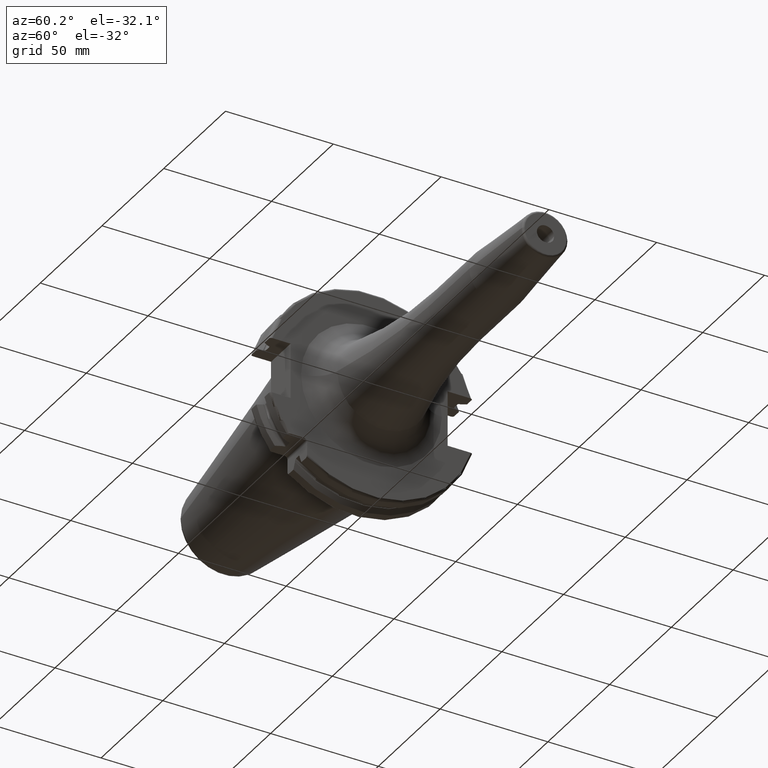
[diagram: clean part render]
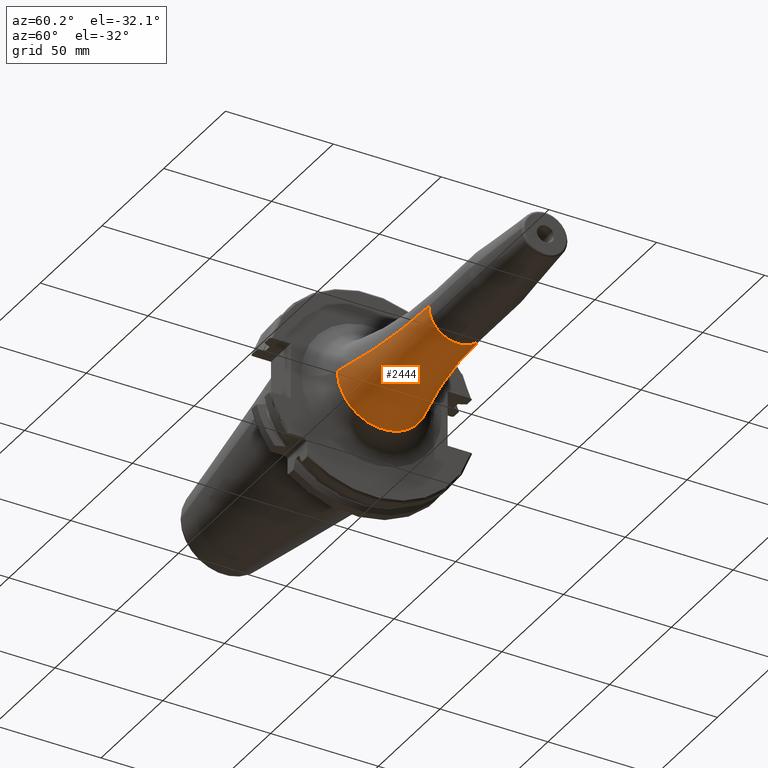
[diagram: same view with one face highlighted and labeled with its STEP entity id]
A machine part, auxiliary view. The second image highlights one B-rep face of the part: STEP entity #2444.
In plain terms, the highlighted toroidal blend (fillet) surface has major radius 263.5 mm and minor (blend) radius 250 mm.
Its self-contained STEP definition (entity closure, byte-faithful):
#911=CARTESIAN_POINT('',(2.812563025210E1,0.E0,0.E0));
#912=DIRECTION('',(1.E0,0.E0,0.E0));
#913=DIRECTION('',(0.E0,-1.E0,0.E0));
#914=AXIS2_PLACEMENT_3D('',#911,#912,#913);
#916=CARTESIAN_POINT('',(8.905E1,-2.635E2,-6.453888631507E-14));
#917=DIRECTION('',(0.E0,0.E0,1.E0));
#918=DIRECTION('',(0.E0,1.E0,0.E0));
#919=AXIS2_PLACEMENT_3D('',#916,#917,#918);
#921=CARTESIAN_POINT('',(8.905E1,2.635E2,3.226944315753E-14));
#922=DIRECTION('',(0.E0,0.E0,-1.E0));
#923=DIRECTION('',(0.E0,-1.E0,0.E0));
#924=AXIS2_PLACEMENT_3D('',#921,#922,#923);
#926=CARTESIAN_POINT('',(8.905E1,0.E0,0.E0));
#927=DIRECTION('',(1.E0,0.E0,0.E0));
#928=DIRECTION('',(0.E0,-1.E0,0.E0));
#929=AXIS2_PLACEMENT_3D('',#926,#927,#928);
#1472=CARTESIAN_POINT('',(8.905E1,1.35E1,0.E0));
#1473=CARTESIAN_POINT('',(8.905E1,-1.35E1,0.E0));
#1474=VERTEX_POINT('',#1472);
#1475=VERTEX_POINT('',#1473);
#1480=CARTESIAN_POINT('',(2.812563025210E1,-2.103717569322E1,0.E0));
#1481=CARTESIAN_POINT('',(2.812563025210E1,2.103717569322E1,0.E0));
#1482=VERTEX_POINT('',#1480);
#1483=VERTEX_POINT('',#1481);
#2432=CARTESIAN_POINT('',(8.905E1,0.E0,0.E0));
#2433=DIRECTION('',(1.E0,0.E0,0.E0));
#2434=DIRECTION('',(0.E0,-1.E0,0.E0));
#2435=AXIS2_PLACEMENT_3D('',#2432,#2433,#2434);
#2436=TOROIDAL_SURFACE('',#2435,2.635E2,2.5E2);
#2437=ORIENTED_EDGE('',*,*,#2397,.F.);
#2438=ORIENTED_EDGE('',*,*,#2427,.F.);
#2440=ORIENTED_EDGE('',*,*,#2439,.T.);
#2441=ORIENTED_EDGE('',*,*,#2423,.T.);
#2442=EDGE_LOOP('',(#2437,#2438,#2440,#2441));
#2443=FACE_OUTER_BOUND('',#2442,.F.);
#2444=ADVANCED_FACE('',(#2443),#2436,.F.);
#915=CIRCLE('',#914,2.103717569322E1);
#920=CIRCLE('',#919,2.5E2);
#925=CIRCLE('',#924,2.5E2);
#930=CIRCLE('',#929,1.35E1);
#2397=EDGE_CURVE('',#1482,#1483,#915,.T.);
#2423=EDGE_CURVE('',#1474,#1483,#925,.T.);
#2427=EDGE_CURVE('',#1475,#1482,#920,.T.);
#2439=EDGE_CURVE('',#1475,#1474,#930,.T.);